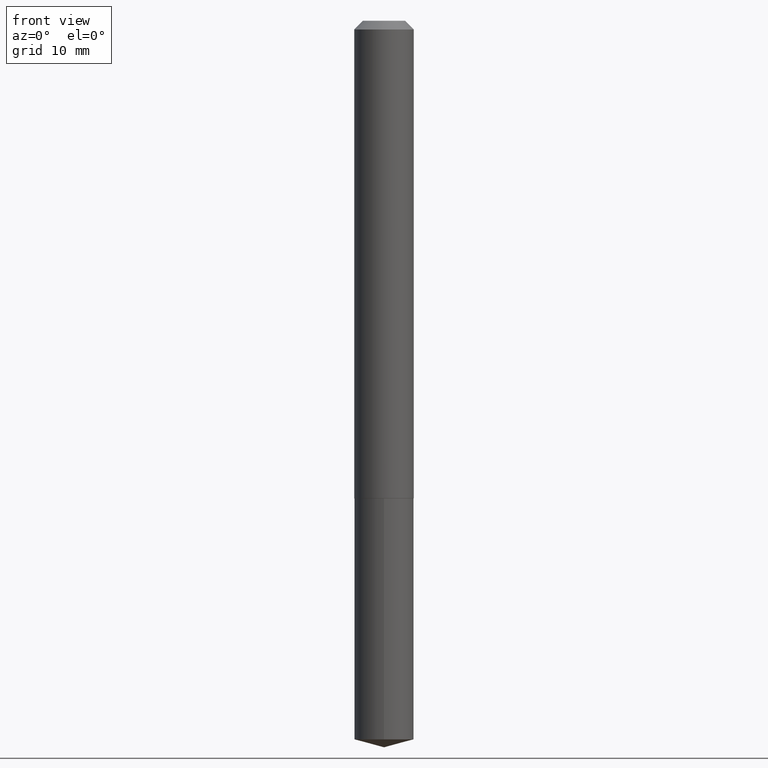
[diagram: clean part render]
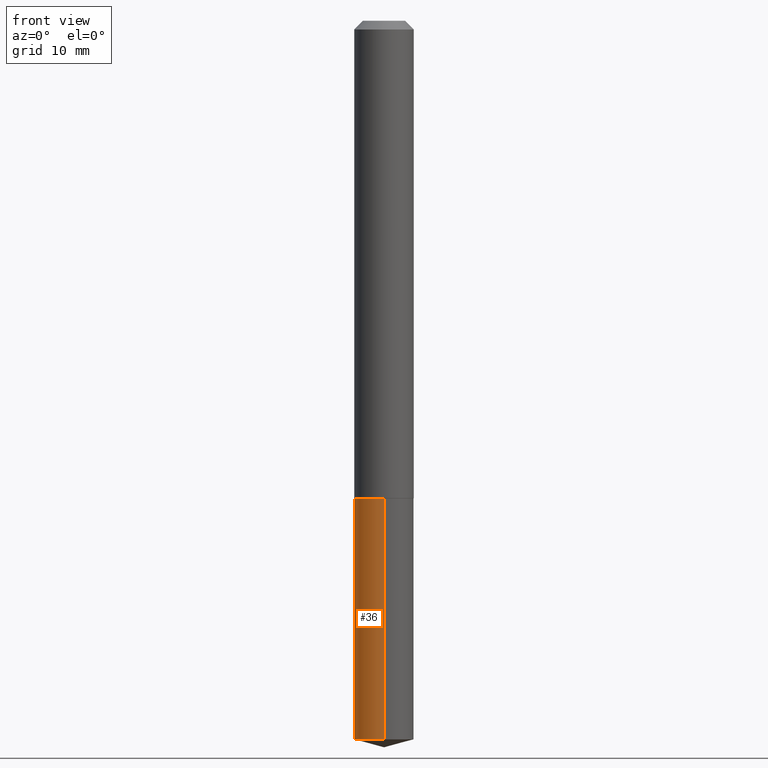
[diagram: same view with one face highlighted and labeled with its STEP entity id]
A machine part, front view. The second image highlights one B-rep face of the part: STEP entity #36.
In plain terms, the highlighted cylindrical surface (edge-blend (fillet) strip) has radius 2.7 mm, axis along (-0, 0, 1).
Its self-contained STEP definition (entity closure, byte-faithful):
#5 = VERTEX_POINT ( 'NONE', #233 ) ;
#26 = CARTESIAN_POINT ( 'NONE',  ( 4.178328002247923804E-29, -5.965545015547398653E-15, -1.708599999999999897 ) ) ;
#29 = DIRECTION ( 'NONE',  ( -6.982962677686265922E-15, -1.000000000000000000, 2.569941668545873170E-15 ) ) ;
#36 = ADVANCED_FACE ( 'NONE', ( #229 ), #311, .T. ) ;
#43 = DIRECTION ( 'NONE',  ( -2.445559257304033306E-29, 3.491351807692727291E-15, 1.000000000000000000 ) ) ;
#48 = CARTESIAN_POINT ( 'NONE',  ( 6.284729767136713731E-29, -8.972705683442572229E-15, -2.569917000844571753 ) ) ;
#52 = CARTESIAN_POINT ( 'NONE',  ( 7.553069281130489560E-16, 0.1062999999999909850, -2.569917000844572197 ) ) ;
#67 = VERTEX_POINT ( 'NONE', #338 ) ;
#69 = EDGE_LOOP ( 'NONE', ( #353, #246, #162, #124 ) ) ;
#83 = DIRECTION ( 'NONE',  ( -2.445559257304033306E-29, 3.491351807692727291E-15, 1.000000000000000000 ) ) ;
#86 = CARTESIAN_POINT ( 'NONE',  ( 4.178328002247923804E-29, -5.965545015547398653E-15, -1.708599999999999897 ) ) ;
#93 = CARTESIAN_POINT ( 'NONE',  ( -7.422889326379869312E-16, -0.1063000000000089568, -2.569917000844570865 ) ) ;
#94 = VERTEX_POINT ( 'NONE', #93 ) ;
#113 = DIRECTION ( 'NONE',  ( -2.445559257304033306E-29, 3.491351807692727291E-15, 1.000000000000000000 ) ) ;
#124 = ORIENTED_EDGE ( 'NONE', *, *, #378, .F. ) ;
#137 = EDGE_CURVE ( 'NONE', #94, #5, #326, .T. ) ;
#144 = EDGE_CURVE ( 'NONE', #303, #94, #332, .T. ) ;
#162 = ORIENTED_EDGE ( 'NONE', *, *, #137, .T. ) ;
#173 = AXIS2_PLACEMENT_3D ( 'NONE', #26, #113, #264 ) ;
#188 = AXIS2_PLACEMENT_3D ( 'NONE', #48, #83, #196 ) ;
#191 = CARTESIAN_POINT ( 'NONE',  ( 7.553069281130281498E-16, 0.1062999999999940520, -1.708600000000000119 ) ) ;
#196 = DIRECTION ( 'NONE',  ( -6.982962677686265922E-15, -1.000000000000000000, 5.139883337091746339E-15 ) ) ;
#229 = FACE_OUTER_BOUND ( 'NONE', #69, .T. ) ;
#233 = CARTESIAN_POINT ( 'NONE',  ( -7.422889326380084277E-16, -0.1063000000000059592, -1.708599999999999675 ) ) ;
#246 = ORIENTED_EDGE ( 'NONE', *, *, #144, .T. ) ;
#264 = DIRECTION ( 'NONE',  ( -6.982962677686265922E-15, -1.000000000000000000, 2.569941668545873170E-15 ) ) ;
#285 = CIRCLE ( 'NONE', #373, 0.1063000000000000056 ) ;
#297 = DIRECTION ( 'NONE',  ( -2.445559257304033306E-29, 3.491351807692727291E-15, 1.000000000000000000 ) ) ;
#303 = VERTEX_POINT ( 'NONE', #52 ) ;
#305 = VECTOR ( 'NONE', #43, 39.37007874015748143 ) ;
#307 = DIRECTION ( 'NONE',  ( -2.445559257304033306E-29, 3.491351807692727291E-15, 1.000000000000000000 ) ) ;
#311 = CYLINDRICAL_SURFACE ( 'NONE', #173, 0.1063000000000000056 ) ;
#326 = LINE ( 'NONE', #329, #305 ) ;
#329 = CARTESIAN_POINT ( 'NONE',  ( -7.422889326380084277E-16, -0.1063000000000059592, -1.708599999999999675 ) ) ;
#332 = CIRCLE ( 'NONE', #188, 0.1063000000000000056 ) ;
#338 = CARTESIAN_POINT ( 'NONE',  ( 7.553069281130493504E-16, 0.1062999999999940243, -1.708600000000000119 ) ) ;
#339 = VECTOR ( 'NONE', #307, 39.37007874015748143 ) ;
#341 = LINE ( 'NONE', #191, #339 ) ;
#345 = EDGE_CURVE ( 'NONE', #303, #67, #341, .T. ) ;
#353 = ORIENTED_EDGE ( 'NONE', *, *, #345, .F. ) ;
#373 = AXIS2_PLACEMENT_3D ( 'NONE', #86, #297, #29 ) ;
#378 = EDGE_CURVE ( 'NONE', #67, #5, #285, .T. ) ;